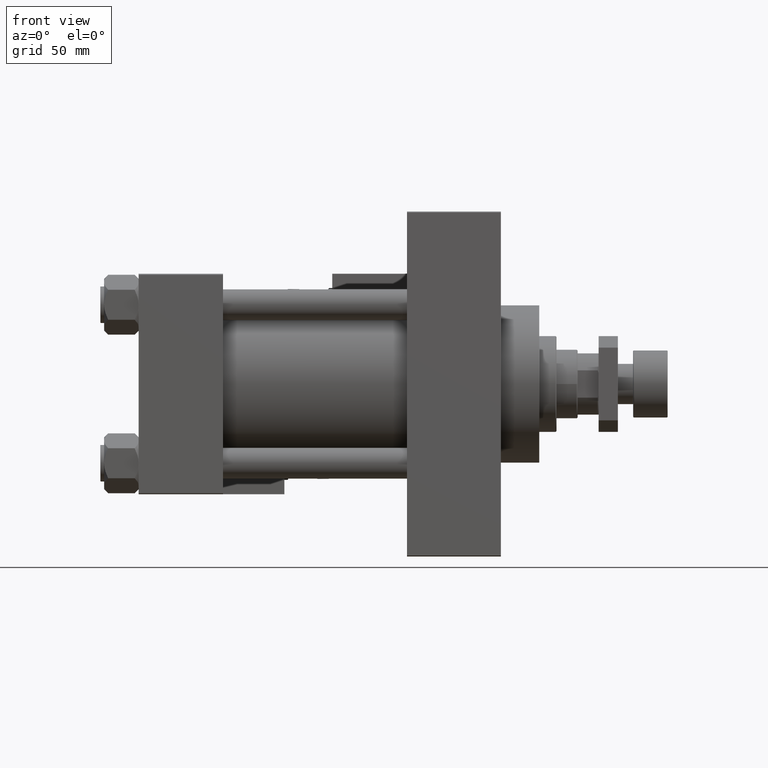
[diagram: clean part render]
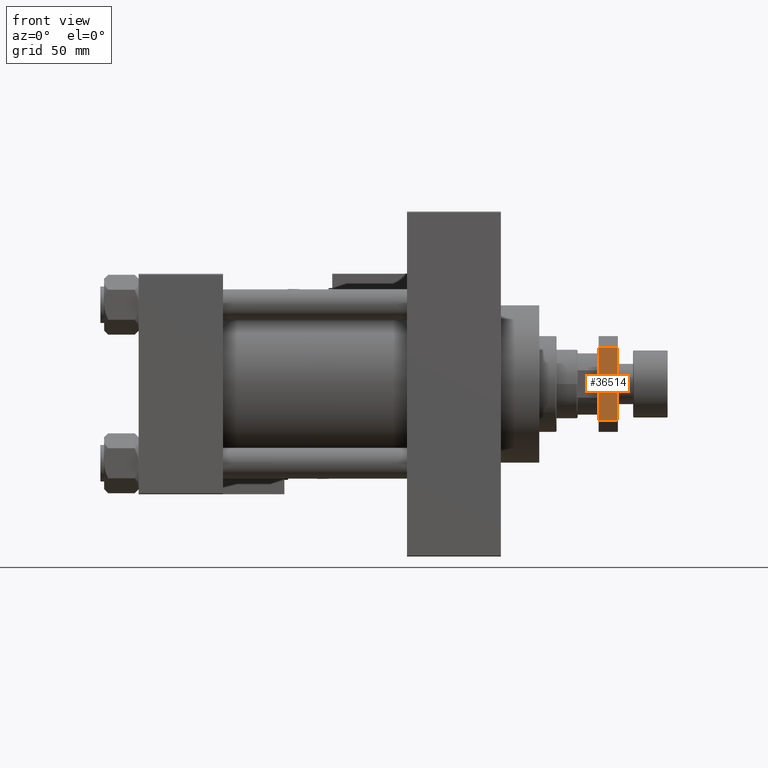
[diagram: same view with one face highlighted and labeled with its STEP entity id]
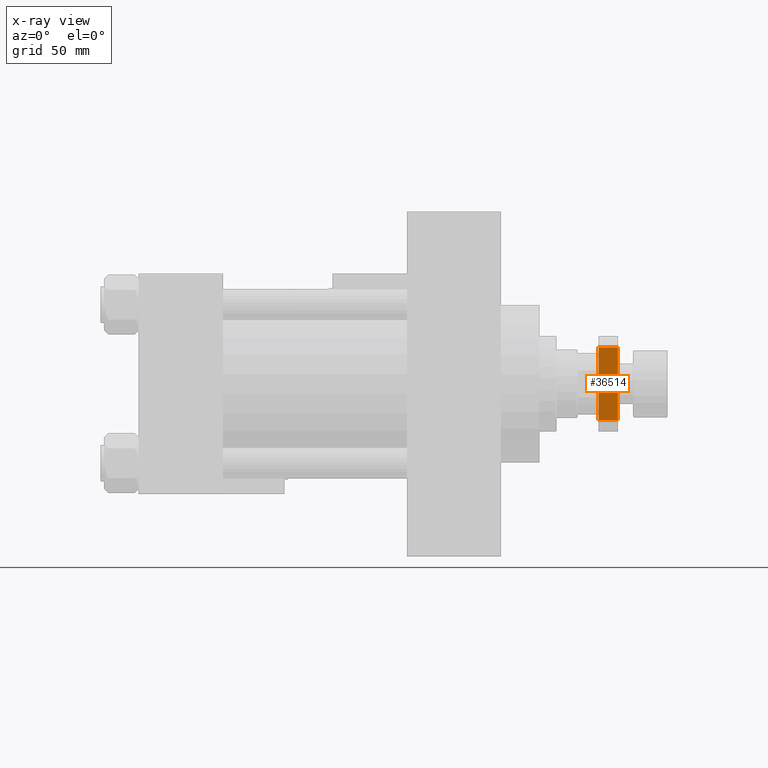
[diagram: x-ray of the same camera — body ghosted, the highlighted face saturated]
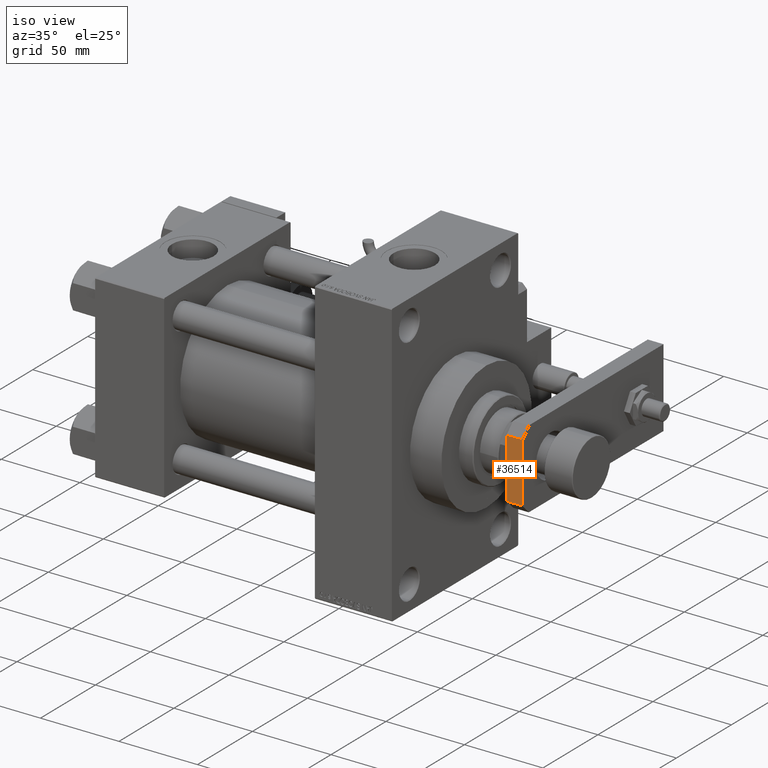
[diagram: same view with one face highlighted and labeled with its STEP entity id]
A machine part, front view. The second image highlights one B-rep face of the part: STEP entity #36514.
The next image is the same camera in x-ray: the body ghosted, the highlighted face saturated — about 0% of this face is hidden behind the body in this view.
A second angle (iso view) of the same face is appended — the face is thin or edge-on in the first view.
In plain terms, the highlighted planar face has unit normal (0, 1, 0).
Its self-contained STEP definition (entity closure, byte-faithful):
#1678 = EDGE_CURVE ( 'NONE', #41565, #32866, #16168, .T. ) ;
#2904 = CARTESIAN_POINT ( 'NONE',  ( -25.00000000000001421, 0.000000000000000000, 10.00000000000000000 ) ) ;
#5631 = DIRECTION ( 'NONE',  ( 0.000000000000000000, 0.000000000000000000, -1.000000000000000000 ) ) ;
#6364 = VECTOR ( 'NONE', #19499, 1000.000000000000000 ) ;
#7173 = VECTOR ( 'NONE', #16691, 1000.000000000000000 ) ;
#10773 = CARTESIAN_POINT ( 'NONE',  ( 18.99999999999996803, 0.000000000000000000, 0.000000000000000000 ) ) ;
#12878 = CARTESIAN_POINT ( 'NONE',  ( -25.00000000000001421, 0.000000000000000000, 0.000000000000000000 ) ) ;
#13349 = AXIS2_PLACEMENT_3D ( 'NONE', #39564, #22389, #31120 ) ;
#14257 = CARTESIAN_POINT ( 'NONE',  ( -18.99999999999999645, 0.000000000000000000, 10.00000000000000000 ) ) ;
#16168 = LINE ( 'NONE', #12878, #7173 ) ;
#16691 = DIRECTION ( 'NONE',  ( 1.000000000000000000, 0.000000000000000000, 0.000000000000000000 ) ) ;
#18859 = PLANE ( 'NONE',  #13349 ) ;
#19499 = DIRECTION ( 'NONE',  ( 1.000000000000000000, 0.000000000000000000, 0.000000000000000000 ) ) ;
#22223 = LINE ( 'NONE', #42382, #39962 ) ;
#22389 = DIRECTION ( 'NONE',  ( 0.000000000000000000, 1.000000000000000000, 0.000000000000000000 ) ) ;
#24142 = ORIENTED_EDGE ( 'NONE', *, *, #1678, .T. ) ;
#24702 = LINE ( 'NONE', #49253, #53172 ) ;
#27658 = LINE ( 'NONE', #2904, #6364 ) ;
#28756 = EDGE_CURVE ( 'NONE', #32866, #31933, #24702, .T. ) ;
#30115 = CARTESIAN_POINT ( 'NONE',  ( -18.99999999999999645, 0.000000000000000000, 0.000000000000000000 ) ) ;
#31120 = DIRECTION ( 'NONE',  ( 0.000000000000000000, -0.000000000000000000, 1.000000000000000000 ) ) ;
#31933 = VERTEX_POINT ( 'NONE', #48290 ) ;
#32866 = VERTEX_POINT ( 'NONE', #10773 ) ;
#34788 = EDGE_CURVE ( 'NONE', #48835, #31933, #27658, .T. ) ;
#36514 = ADVANCED_FACE ( 'NONE', ( #47491 ), #18859, .F. ) ;
#39564 = CARTESIAN_POINT ( 'NONE',  ( -25.00000000000001421, 0.000000000000000000, 10.00000000000000000 ) ) ;
#39962 = VECTOR ( 'NONE', #5631, 1000.000000000000000 ) ;
#40335 = EDGE_LOOP ( 'NONE', ( #48698, #47705, #24142, #43521 ) ) ;
#41323 = DIRECTION ( 'NONE',  ( 0.000000000000000000, 0.000000000000000000, 1.000000000000000000 ) ) ;
#41565 = VERTEX_POINT ( 'NONE', #30115 ) ;
#42382 = CARTESIAN_POINT ( 'NONE',  ( -18.99999999999999645, 0.000000000000000000, 10.00000000000000000 ) ) ;
#43521 = ORIENTED_EDGE ( 'NONE', *, *, #28756, .T. ) ;
#47491 = FACE_OUTER_BOUND ( 'NONE', #40335, .T. ) ;
#47705 = ORIENTED_EDGE ( 'NONE', *, *, #49419, .T. ) ;
#48290 = CARTESIAN_POINT ( 'NONE',  ( 18.99999999999996803, 0.000000000000000000, 10.00000000000000000 ) ) ;
#48698 = ORIENTED_EDGE ( 'NONE', *, *, #34788, .F. ) ;
#48835 = VERTEX_POINT ( 'NONE', #14257 ) ;
#49253 = CARTESIAN_POINT ( 'NONE',  ( 18.99999999999996803, 0.000000000000000000, 10.00000000000000000 ) ) ;
#49419 = EDGE_CURVE ( 'NONE', #48835, #41565, #22223, .T. ) ;
#53172 = VECTOR ( 'NONE', #41323, 1000.000000000000000 ) ;